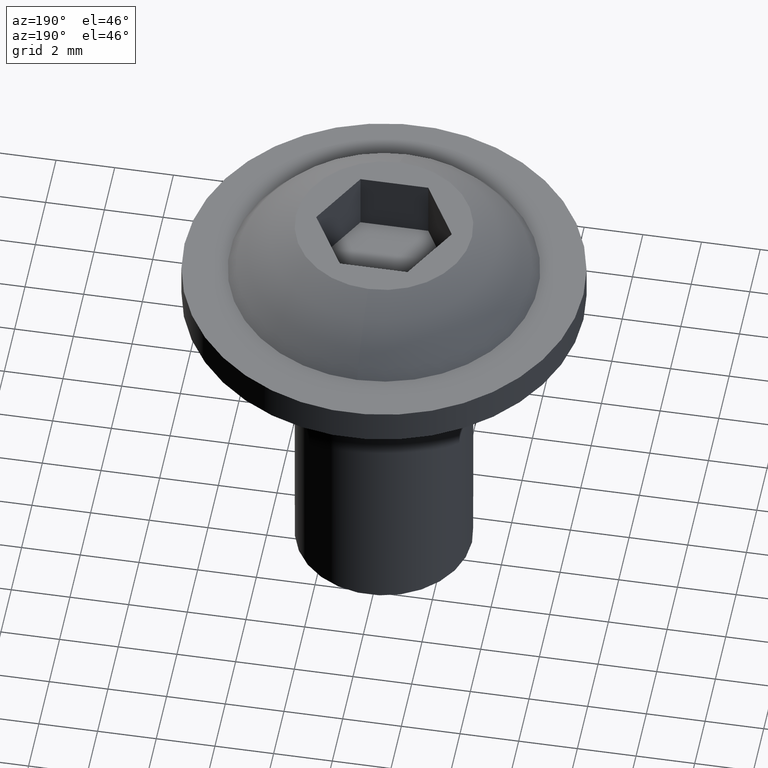
[diagram: clean part render]
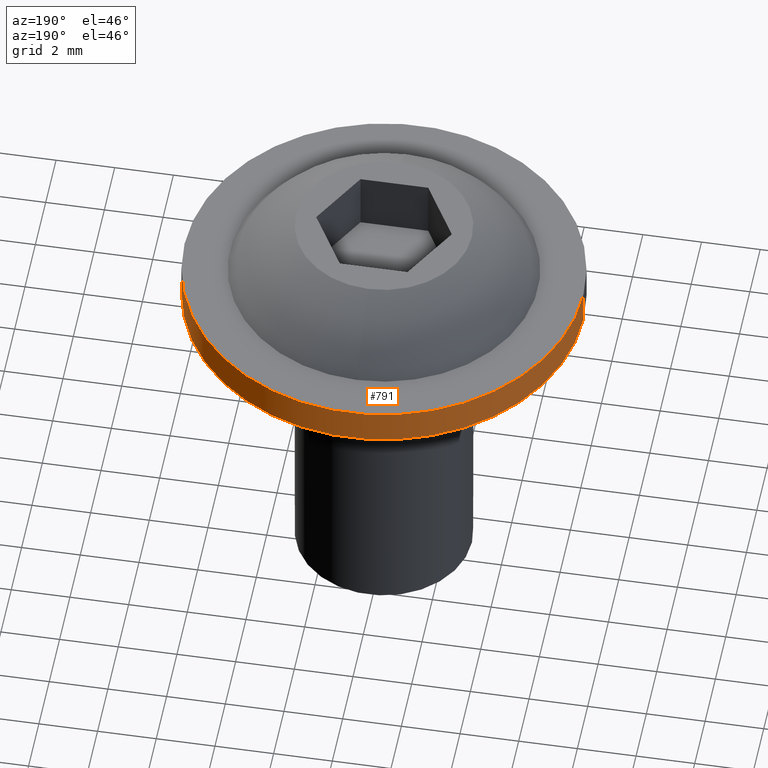
[diagram: same view with one face highlighted and labeled with its STEP entity id]
A machine part, auxiliary view. The second image highlights one B-rep face of the part: STEP entity #791.
In plain terms, the highlighted cylindrical surface (partial cylindrical patch) has radius 6.8 mm, axis along (-0, -0, -1).
Its self-contained STEP definition (entity closure, byte-faithful):
#5 = DIRECTION ( 'NONE',  ( -2.220446049250310100E-016, -2.220446049250310100E-016, -1.000000000000000000 ) ) ;
#26 = CARTESIAN_POINT ( 'NONE',  ( 4.092601131822876200E-031, 4.092601131822876200E-031, 0.0000000000000000000 ) ) ;
#36 = ORIENTED_EDGE ( 'NONE', *, *, #272, .F. ) ;
#53 = CYLINDRICAL_SURFACE ( 'NONE', #229, 6.799999999999999800 ) ;
#56 = CARTESIAN_POINT ( 'NONE',  ( -6.799999999999999800, 2.664535259100380000E-016, 1.200000000000002800 ) ) ;
#83 = EDGE_LOOP ( 'NONE', ( #754, #400, #275, #36 ) ) ;
#106 = LINE ( 'NONE', #183, #861 ) ;
#132 = CARTESIAN_POINT ( 'NONE',  ( 6.799999999999999800, 9.659865863752194100E-016, -1.509903313490211100E-015 ) ) ;
#182 = DIRECTION ( 'NONE',  ( -2.220446049250310100E-016, -2.220446049250310100E-016, -1.000000000000000000 ) ) ;
#183 = CARTESIAN_POINT ( 'NONE',  ( -6.799999999999999800, 1.332267629550190000E-016, 0.6000000000000014200 ) ) ;
#197 = FACE_OUTER_BOUND ( 'NONE', #83, .T. ) ;
#229 = AXIS2_PLACEMENT_3D ( 'NONE', #667, #5, #530 ) ;
#239 = CARTESIAN_POINT ( 'NONE',  ( -6.799999999999999800, 4.092601131822876200E-031, 1.509903313490210900E-015 ) ) ;
#272 = EDGE_CURVE ( 'NONE', #600, #684, #106, .T. ) ;
#275 = ORIENTED_EDGE ( 'NONE', *, *, #487, .F. ) ;
#301 = CARTESIAN_POINT ( 'NONE',  ( 2.664535259100380000E-016, 2.664535259100380000E-016, 1.200000000000001500 ) ) ;
#341 = DIRECTION ( 'NONE',  ( -1.000000000000000000, 0.0000000000000000000, 2.220446049250310100E-016 ) ) ;
#359 = VECTOR ( 'NONE', #182, 1000.000000000000000 ) ;
#377 = CARTESIAN_POINT ( 'NONE',  ( 6.799999999999999800, 9.659865863752190200E-016, 0.5999999999999984200 ) ) ;
#387 = AXIS2_PLACEMENT_3D ( 'NONE', #301, #443, #699 ) ;
#400 = ORIENTED_EDGE ( 'NONE', *, *, #735, .T. ) ;
#420 = VERTEX_POINT ( 'NONE', #596 ) ;
#443 = DIRECTION ( 'NONE',  ( -2.220446049250310100E-016, -2.220446049250310100E-016, -1.000000000000000000 ) ) ;
#447 = DIRECTION ( 'NONE',  ( -2.220446049250310100E-016, -2.220446049250310100E-016, -1.000000000000000000 ) ) ;
#487 = EDGE_CURVE ( 'NONE', #684, #778, #758, .T. ) ;
#530 = DIRECTION ( 'NONE',  ( -1.000000000000000000, 0.0000000000000000000, 2.232180943352509300E-016 ) ) ;
#535 = LINE ( 'NONE', #377, #359 ) ;
#537 = CIRCLE ( 'NONE', #387, 6.799999999999999800 ) ;
#575 = EDGE_CURVE ( 'NONE', #600, #420, #537, .T. ) ;
#596 = CARTESIAN_POINT ( 'NONE',  ( 6.799999999999999800, 9.659865863752194100E-016, 1.200000000000000000 ) ) ;
#600 = VERTEX_POINT ( 'NONE', #56 ) ;
#617 = DIRECTION ( 'NONE',  ( -2.220446049250310100E-016, -2.220446049250310100E-016, -1.000000000000000000 ) ) ;
#667 = CARTESIAN_POINT ( 'NONE',  ( 1.332267629550190000E-016, 1.332267629550190000E-016, 0.5999999999999999800 ) ) ;
#684 = VERTEX_POINT ( 'NONE', #239 ) ;
#697 = AXIS2_PLACEMENT_3D ( 'NONE', #26, #617, #341 ) ;
#699 = DIRECTION ( 'NONE',  ( -1.000000000000000000, 0.0000000000000000000, 2.232180943352509300E-016 ) ) ;
#735 = EDGE_CURVE ( 'NONE', #420, #778, #535, .T. ) ;
#754 = ORIENTED_EDGE ( 'NONE', *, *, #575, .T. ) ;
#758 = CIRCLE ( 'NONE', #697, 6.799999999999999800 ) ;
#778 = VERTEX_POINT ( 'NONE', #132 ) ;
#791 = ADVANCED_FACE ( 'NONE', ( #197 ), #53, .T. ) ;
#861 = VECTOR ( 'NONE', #447, 1000.000000000000000 ) ;